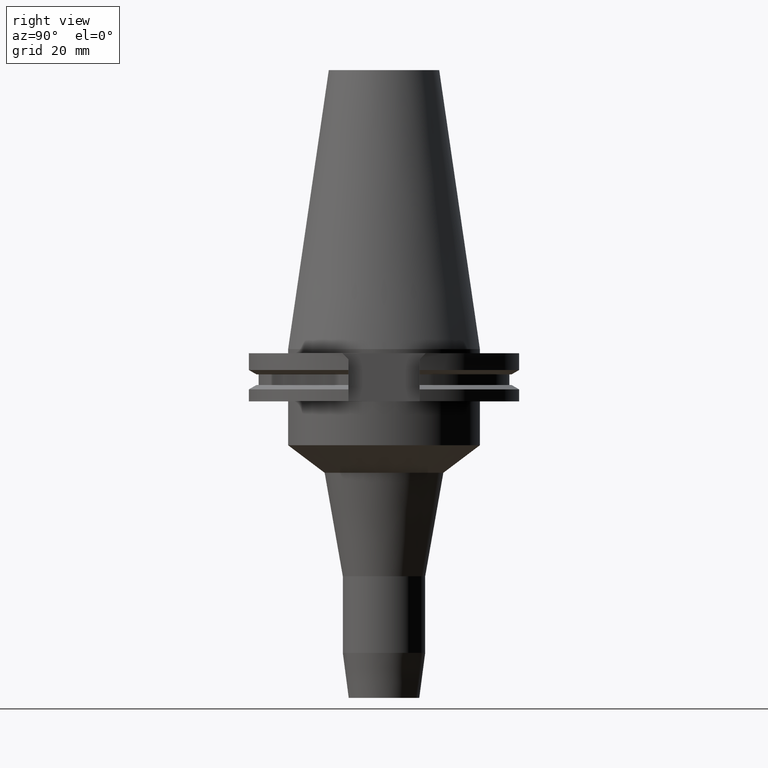
[diagram: clean part render]
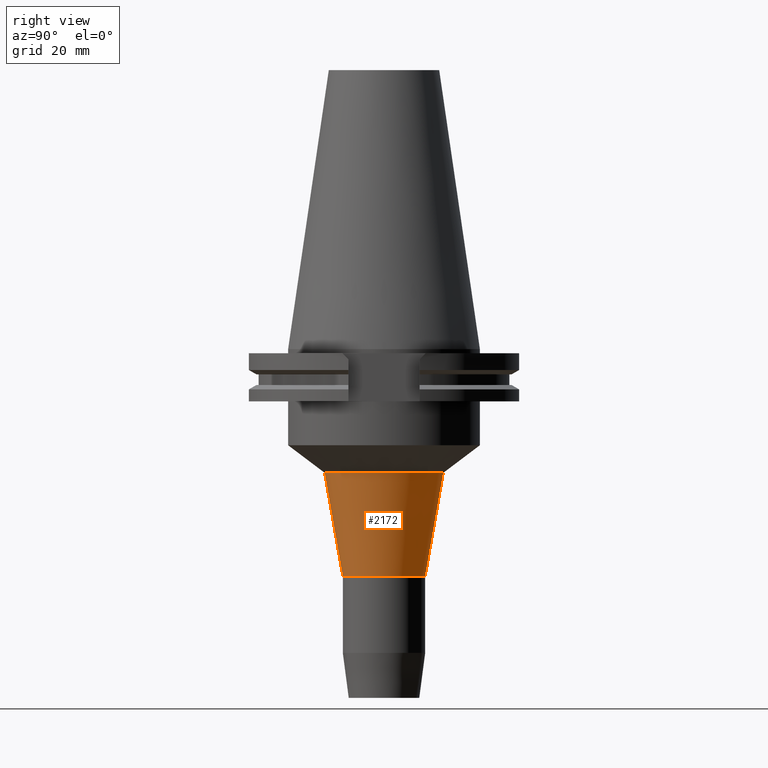
[diagram: same view with one face highlighted and labeled with its STEP entity id]
A machine part, right view. The second image highlights one B-rep face of the part: STEP entity #2172.
In plain terms, the highlighted conical surface has half-angle 9.954 deg.
Its self-contained STEP definition (entity closure, byte-faithful):
#868=DIRECTION('',(0.E0,1.728660627254E-1,-9.849453407970E-1));
#869=VECTOR('',#868,3.826611276858E1);
#870=CARTESIAN_POINT('',(0.E0,-2.161491225011E1,-4.503497051817E1));
#871=LINE('',#870,#869);
#883=DIRECTION('',(0.E0,-1.728660627254E-1,-9.849453407970E-1));
#884=VECTOR('',#883,3.826611276858E1);
#885=CARTESIAN_POINT('',(0.E0,2.161491225011E1,-4.503497051817E1));
#886=LINE('',#885,#884);
#890=CARTESIAN_POINT('',(0.E0,0.E0,-8.2725E1));
#891=DIRECTION('',(0.E0,0.E0,-1.E0));
#892=DIRECTION('',(0.E0,1.E0,0.E0));
#893=AXIS2_PLACEMENT_3D('',#890,#891,#892);
#898=CARTESIAN_POINT('',(0.E0,0.E0,-4.503497051817E1));
#899=DIRECTION('',(0.E0,0.E0,1.E0));
#900=DIRECTION('',(0.E0,-1.E0,0.E0));
#901=AXIS2_PLACEMENT_3D('',#898,#899,#900);
#1352=CARTESIAN_POINT('',(0.E0,2.161491225011E1,-4.503497051817E1));
#1353=VERTEX_POINT('',#1352);
#1354=CARTESIAN_POINT('',(0.E0,-2.161491225012E1,-4.503497051817E1));
#1355=VERTEX_POINT('',#1354);
#1356=CARTESIAN_POINT('',(0.E0,1.5E1,-8.2725E1));
#1357=VERTEX_POINT('',#1356);
#1358=CARTESIAN_POINT('',(0.E0,-1.5E1,-8.2725E1));
#1359=VERTEX_POINT('',#1358);
#2160=CARTESIAN_POINT('',(0.E0,0.E0,-6.387998525909E1));
#2161=DIRECTION('',(0.E0,0.E0,1.E0));
#2162=DIRECTION('',(0.E0,1.E0,0.E0));
#2163=AXIS2_PLACEMENT_3D('',#2160,#2161,#2162);
#2164=CONICAL_SURFACE('',#2163,1.830745612506E1,9.9545E0);
#2165=ORIENTED_EDGE('',*,*,#2150,.T.);
#2167=ORIENTED_EDGE('',*,*,#2166,.T.);
#2168=ORIENTED_EDGE('',*,*,#2153,.F.);
#2169=ORIENTED_EDGE('',*,*,#2124,.T.);
#2170=EDGE_LOOP('',(#2165,#2167,#2168,#2169));
#2171=FACE_OUTER_BOUND('',#2170,.F.);
#894=CIRCLE('',#893,1.5E1);
#902=CIRCLE('',#901,2.161491225012E1);
#2124=EDGE_CURVE('',#1355,#1353,#902,.T.);
#2150=EDGE_CURVE('',#1353,#1357,#886,.T.);
#2153=EDGE_CURVE('',#1355,#1359,#871,.T.);
#2166=EDGE_CURVE('',#1357,#1359,#894,.T.);
#2172=ADVANCED_FACE('',(#2171),#2164,.T.);